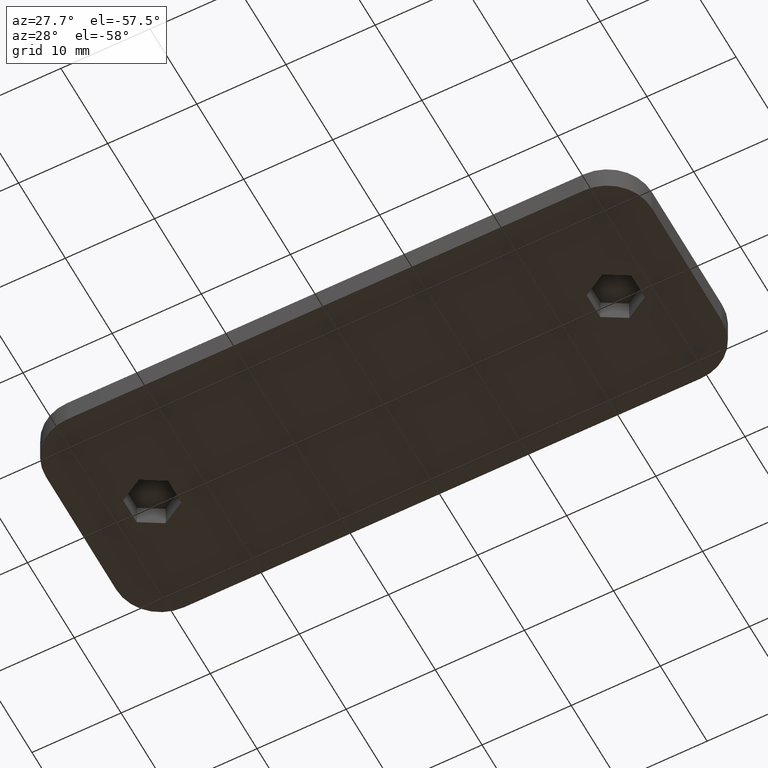
[diagram: clean part render]
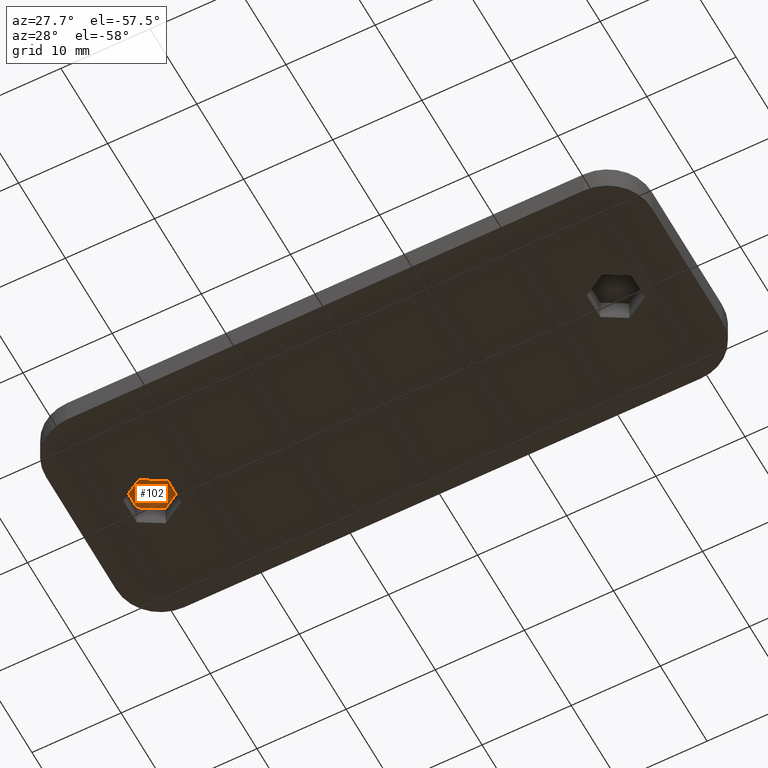
[diagram: same view with one face highlighted and labeled with its STEP entity id]
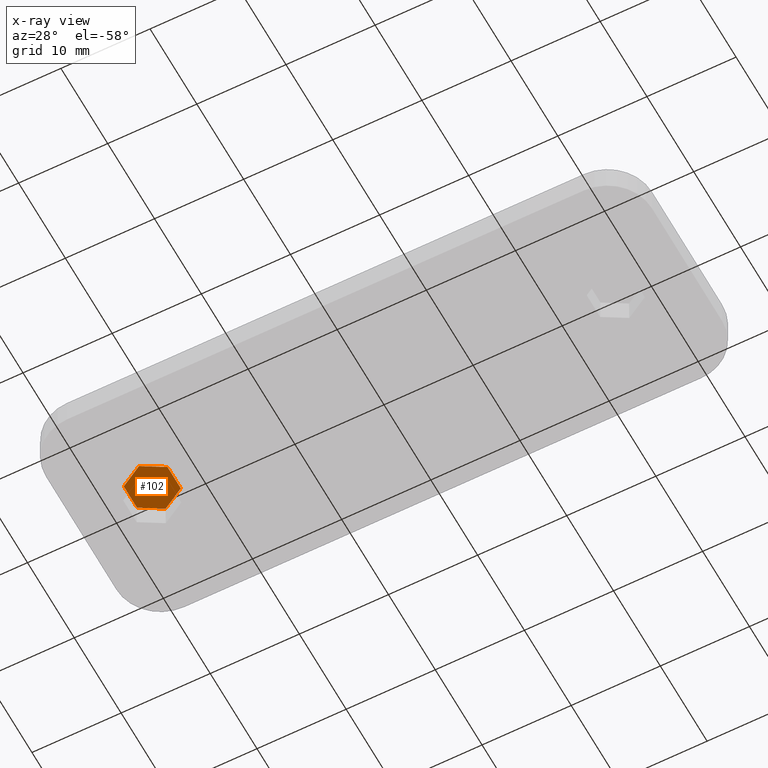
[diagram: x-ray of the same camera — body ghosted, the highlighted face saturated]
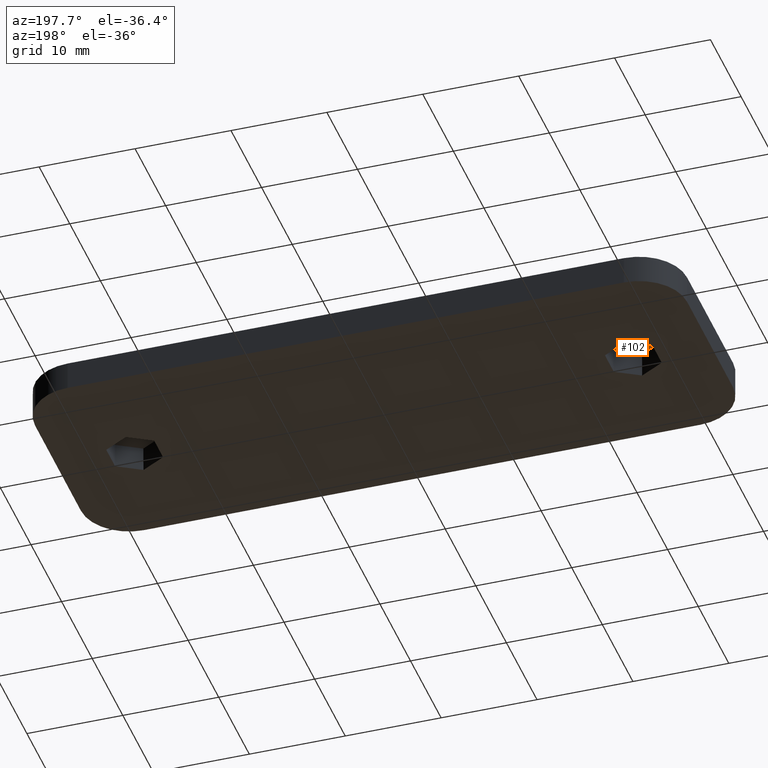
[diagram: same view with one face highlighted and labeled with its STEP entity id]
A machine part, auxiliary view. The second image highlights one B-rep face of the part: STEP entity #102.
The next image is the same camera in x-ray: the body ghosted, the highlighted face saturated — about 0% of this face is hidden behind the body in this view.
A second angle (auxiliary view) of the same face is appended — the face is thin or edge-on in the first view.
In plain terms, the highlighted planar face has unit normal (0, 0, 1).
Its self-contained STEP definition (entity closure, byte-faithful):
#102 = ADVANCED_FACE( '', ( #202 ), #203, .F. );
#202 = FACE_OUTER_BOUND( '', #335, .T. );
#203 = PLANE( '', #336 );
#335 = EDGE_LOOP( '', ( #636, #637, #638, #639, #640, #641 ) );
#336 = AXIS2_PLACEMENT_3D( '', #642, #643, #644 );
#636 = ORIENTED_EDGE( '', *, *, #967, .T. );
#637 = ORIENTED_EDGE( '', *, *, #970, .T. );
#638 = ORIENTED_EDGE( '', *, *, #972, .T. );
#639 = ORIENTED_EDGE( '', *, *, #974, .T. );
#640 = ORIENTED_EDGE( '', *, *, #976, .T. );
#641 = ORIENTED_EDGE( '', *, *, #977, .T. );
#642 = CARTESIAN_POINT( '', ( -28.5000000000000, 4.33012701892220, 2.60000000000002 ) );
#643 = DIRECTION( '', ( 0.000000000000000, 6.12303176911189E-017, 1.00000000000000 ) );
#644 = DIRECTION( '', ( -1.00000000000000, -4.99600361081321E-016, 3.05906888276070E-032 ) );
#967 = EDGE_CURVE( '', #1184, #1182, #1185, .T. );
#970 = EDGE_CURVE( '', #1182, #1187, #1189, .T. );
#972 = EDGE_CURVE( '', #1187, #1190, #1192, .T. );
#974 = EDGE_CURVE( '', #1190, #1193, #1195, .T. );
#976 = EDGE_CURVE( '', #1193, #1196, #1198, .T. );
#977 = EDGE_CURVE( '', #1196, #1184, #1199, .T. );
#1182 = VERTEX_POINT( '', #1498 );
#1184 = VERTEX_POINT( '', #1501 );
#1185 = LINE( '', #1502, #1503 );
#1187 = VERTEX_POINT( '', #1506 );
#1189 = LINE( '', #1509, #1510 );
#1190 = VERTEX_POINT( '', #1511 );
#1192 = LINE( '', #1514, #1515 );
#1193 = VERTEX_POINT( '', #1516 );
#1195 = LINE( '', #1519, #1520 );
#1196 = VERTEX_POINT( '', #1521 );
#1198 = LINE( '', #1524, #1525 );
#1199 = LINE( '', #1526, #1527 );
#1498 = CARTESIAN_POINT( '', ( -23.5453831688134, 1.41717368824299, 2.60000000000002 ) );
#1501 = CARTESIAN_POINT( '', ( -26.0000000000000, 2.83434737648598, 2.60000000000002 ) );
#1502 = CARTESIAN_POINT( '', ( -23.5226915844067, 1.40407269587746, 2.60000000000002 ) );
#1503 = VECTOR( '', #1775, 1000.00000000000 );
#1506 = CARTESIAN_POINT( '', ( -23.5453831688134, -1.41717368824299, 2.60000000000002 ) );
#1509 = CARTESIAN_POINT( '', ( -23.5453831688134, 1.44337567297407, 2.60000000000002 ) );
#1510 = VECTOR( '', #1778, 1000.00000000000 );
#1511 = CARTESIAN_POINT( '', ( -26.0000000000000, -2.83434737648598, 2.60000000000002 ) );
#1514 = CARTESIAN_POINT( '', ( -22.2726915844067, -0.682384859390420, 2.60000000000002 ) );
#1515 = VECTOR( '', #1780, 1000.00000000000 );
#1516 = CARTESIAN_POINT( '', ( -28.4546168311866, -1.41717368824299, 2.60000000000002 ) );
#1519 = CARTESIAN_POINT( '', ( -25.9773084155933, -2.84744836885152, 2.60000000000002 ) );
#1520 = VECTOR( '', #1782, 1000.00000000000 );
#1521 = CARTESIAN_POINT( '', ( -28.4546168311866, 1.41717368824299, 2.60000000000002 ) );
#1524 = CARTESIAN_POINT( '', ( -28.4546168311866, 1.44337567297407, 2.60000000000002 ) );
#1525 = VECTOR( '', #1784, 1000.00000000000 );
#1526 = CARTESIAN_POINT( '', ( -24.7273084155933, 3.56913620533855, 2.60000000000002 ) );
#1527 = VECTOR( '', #1785, 1000.00000000000 );
#1775 = DIRECTION( '', ( 0.866025403784439, -0.500000000000000, 3.06151588455594E-017 ) );
#1778 = DIRECTION( '', ( 4.99600361081321E-016, -1.00000000000000, 6.12303176911189E-017 ) );
#1780 = DIRECTION( '', ( -0.866025403784439, -0.500000000000000, 3.06151588455594E-017 ) );
#1782 = DIRECTION( '', ( -0.866025403784439, 0.500000000000000, -3.06151588455594E-017 ) );
#1784 = DIRECTION( '', ( 1.11022302462516E-016, 1.00000000000000, -6.12303176911189E-017 ) );
#1785 = DIRECTION( '', ( 0.866025403784439, 0.500000000000000, -3.06151588455594E-017 ) );